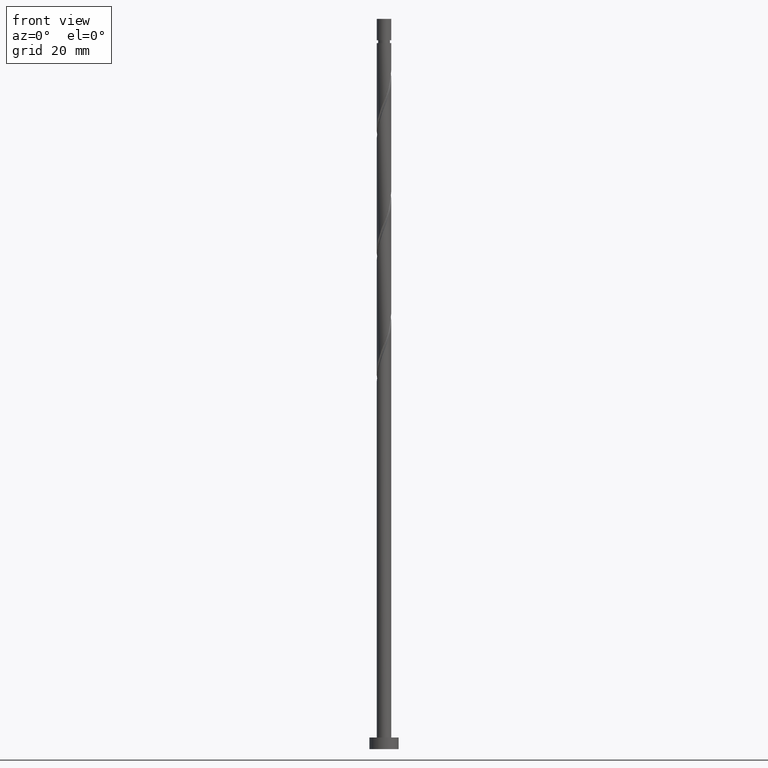
[diagram: clean part render]
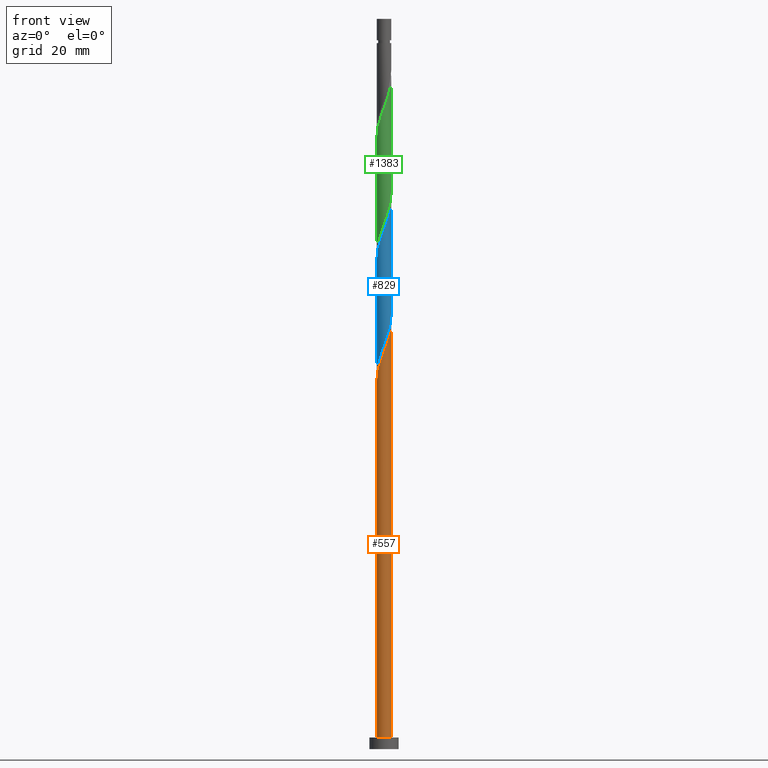
[diagram: same view with three faces highlighted in distinct colors, each labeled with its STEP entity id]
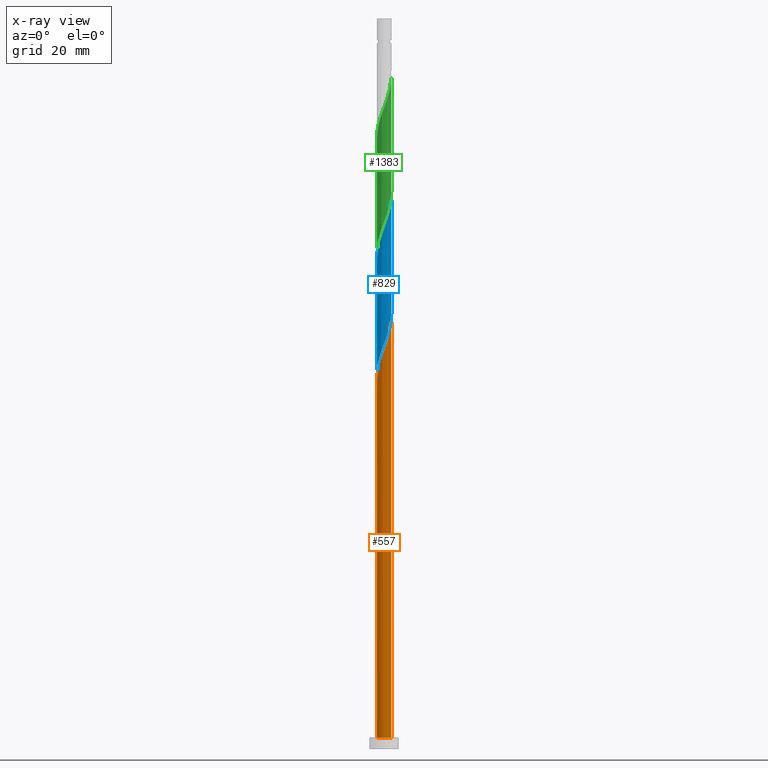
[diagram: x-ray of the same camera — body ghosted, the three highlighted faces saturated]
A machine part, front view with three faces highlighted in distinct colors.
The next image is the same camera in x-ray (body ghosted, the three faces saturated) — at least one of them is partly hidden behind the body in this view.
Their STEP definitions:

[orange] entity #557 — the highlighted cylindrical surface (edge-blend (fillet) strip) has radius 1.25 mm, axis along (-0, -0, -1).
#10 = DIRECTION ( 'NONE',  ( -0.000000000000000000, -0.000000000000000000, -1.000000000000000000 ) ) ;
#25 = CARTESIAN_POINT ( 'NONE',  ( -1.250000000000001998, -1.187453740429884342E-14, 62.88091715462329745 ) ) ;
#31 =( BOUNDED_CURVE ( )  B_SPLINE_CURVE ( 2, ( #25, #989, #498, #626, #1104, #827, #1320, #1550, #121, #1450, #1562, #445, #218, #211, #88, #819, #460, #338, #466, #951, #937, #701, #1288 ),
 .UNSPECIFIED., .F., .T. ) 
 B_SPLINE_CURVE_WITH_KNOTS ( ( 3, 2, 2, 2, 2, 2, 2, 2, 2, 2, 2, 3 ),
 ( 0.05453220231385529082, 0.06250000000000000000, 0.07499999999999995559, 0.08750000000000002220, 0.09999999999999997780, 0.1125000000000000444, 0.1250000000000000000, 0.1374999999999999556, 0.1500000000000000222, 0.1624999999999999778, 0.1750000000000000444, 0.1795322023138555267 ),
 .UNSPECIFIED. ) 
 CURVE ( )  GEOMETRIC_REPRESENTATION_ITEM ( )  RATIONAL_B_SPLINE_CURVE ( ( 0.9039174447099467269, 0.9019565955404762470, 0.9090909090909247148, 0.8978984914501405568, 0.9090909090909247148, 0.8978984914501405568, 0.9090909090909247148, 0.8978984914501405568, 0.9090909090909247148, 0.8978984914501405568, 0.9090909090909247148, 0.8978984914501405568, 0.9090909090909247148, 0.8978984914501405568, 0.9090909090909247148, 0.8978984914501405568, 0.9090909090909247148, 0.8978984914501405568, 0.9090909090909247148, 0.8978984914501405568, 0.9090909090909247148, 0.9050328050005888025, 0.9039174447099467269 ) ) 
 REPRESENTATION_ITEM ( '' )  );
#88 = CARTESIAN_POINT ( 'NONE',  ( 0.6151181395323278567, -1.088177225647684931, 69.79571959609353371 ) ) ;
#113 = DIRECTION ( 'NONE',  ( -0.000000000000000000, -0.000000000000000000, -1.000000000000000000 ) ) ;
#118 = DIRECTION ( 'NONE',  ( -1.000000000000000000, 0.000000000000000000, 0.000000000000000000 ) ) ;
#121 = CARTESIAN_POINT ( 'NONE',  ( -0.5187964976060729372, -1.137255553546201226, 66.67071959609351950 ) ) ;
#182 = EDGE_LOOP ( 'NONE', ( #1233, #870, #1122, #1381 ) ) ;
#204 = VECTOR ( 'NONE', #10, 1000.000000000000000 ) ;
#211 = CARTESIAN_POINT ( 'NONE',  ( 0.4427677986742126759, -1.185602367910983057, 69.27488626276020511 ) ) ;
#218 = CARTESIAN_POINT ( 'NONE',  ( 0.2487468592766552966, -1.225000000000001643, 68.75405292942687652 ) ) ;
#281 = VERTEX_POINT ( 'NONE', #550 ) ;
#309 = DIRECTION ( 'NONE',  ( 1.000000000000000000, 0.000000000000000000, 0.000000000000000000 ) ) ;
#338 = CARTESIAN_POINT ( 'NONE',  ( 1.055086260630533568, -0.6989200819604589610, 71.35821959609353371 ) ) ;
#374 = VECTOR ( 'NONE', #113, 1000.000000000000000 ) ;
#410 = VERTEX_POINT ( 'NONE', #799 ) ;
#445 = CARTESIAN_POINT ( 'NONE',  ( 0.05472591987909802141, -1.264397632089020895, 68.23321959609356213 ) ) ;
#460 = CARTESIAN_POINT ( 'NONE',  ( 0.9212773705104880806, -0.8448360826724228279, 70.83738626276019090 ) ) ;
#466 = CARTESIAN_POINT ( 'NONE',  ( 1.137255553546201226, -0.5187964976060729372, 71.87905292942684810 ) ) ;
#483 = CARTESIAN_POINT ( 'NONE',  ( 0.000000000000000000, 0.000000000000000000, 2.000000000000000000 ) ) ;
#491 = AXIS2_PLACEMENT_3D ( 'NONE', #483, #1511, #309 ) ;
#498 = CARTESIAN_POINT ( 'NONE',  ( -1.225000000000001643, -0.2487468592766554076, 63.54571959609353371 ) ) ;
#520 = VERTEX_POINT ( 'NONE', #908 ) ;
#550 = CARTESIAN_POINT ( 'NONE',  ( 1.250000000000000000, 1.530808498934191571E-16, 2.000000000000000000 ) ) ;
#557 = ADVANCED_FACE ( 'NONE', ( #942 ), #1292, .T. ) ;
#579 = CARTESIAN_POINT ( 'NONE',  ( 1.250000000000000000, 1.530808498934191571E-16, 125.0000000000000000 ) ) ;
#587 = CARTESIAN_POINT ( 'NONE',  ( 0.000000000000000000, 0.000000000000000000, 125.0000000000000000 ) ) ;
#611 = LINE ( 'NONE', #1092, #204 ) ;
#626 = CARTESIAN_POINT ( 'NONE',  ( -1.185602367910983057, -0.4427677986742127869, 64.06655292942689073 ) ) ;
#701 = CARTESIAN_POINT ( 'NONE',  ( 1.250000000000002442, -0.07121717180803631420, 73.10807273208266110 ) ) ;
#799 = CARTESIAN_POINT ( 'NONE',  ( 1.250000000000001998, 1.214441325439654494E-15, 73.29758382128994754 ) ) ;
#819 = CARTESIAN_POINT ( 'NONE',  ( 0.7874684803904430375, -0.9907520833843873609, 70.31655292942689073 ) ) ;
#824 = DIRECTION ( 'NONE',  ( -0.000000000000000000, -0.000000000000000000, -1.000000000000000000 ) ) ;
#827 = CARTESIAN_POINT ( 'NONE',  ( -0.9907520833843873609, -0.7874684803904431485, 65.10821959609354792 ) ) ;
#836 = LINE ( 'NONE', #579, #374 ) ;
#870 = ORIENTED_EDGE ( 'NONE', *, *, #1135, .F. ) ;
#885 = EDGE_CURVE ( 'NONE', #1499, #520, #611, .T. ) ;
#908 = CARTESIAN_POINT ( 'NONE',  ( -1.250000000000000000, 0.000000000000000000, 2.000000000000000000 ) ) ;
#909 = EDGE_CURVE ( 'NONE', #520, #281, #1337, .T. ) ;
#937 = CARTESIAN_POINT ( 'NONE',  ( 1.241911239275444778, -0.1419734966862945535, 72.92071959609353371 ) ) ;
#942 = FACE_OUTER_BOUND ( 'NONE', #182, .T. ) ;
#951 = CARTESIAN_POINT ( 'NONE',  ( 1.219424846461869105, -0.3386729132516872465, 72.39988626276020511 ) ) ;
#970 = AXIS2_PLACEMENT_3D ( 'NONE', #587, #824, #118 ) ;
#989 = CARTESIAN_POINT ( 'NONE',  ( -1.250000000000001554, -0.1256297269074030665, 63.21522173003111789 ) ) ;
#1092 = CARTESIAN_POINT ( 'NONE',  ( -1.250000000000000000, 0.000000000000000000, 125.0000000000000000 ) ) ;
#1104 = CARTESIAN_POINT ( 'NONE',  ( -1.088177225647684931, -0.6151181395323278567, 64.58738626276020511 ) ) ;
#1122 = ORIENTED_EDGE ( 'NONE', *, *, #885, .T. ) ;
#1135 = EDGE_CURVE ( 'NONE', #1499, #410, #31, .T. ) ;
#1140 = EDGE_CURVE ( 'NONE', #410, #281, #836, .T. ) ;
#1150 = CARTESIAN_POINT ( 'NONE',  ( -1.250000000000001998, -1.187453740429884342E-14, 62.88091715462329745 ) ) ;
#1233 = ORIENTED_EDGE ( 'NONE', *, *, #1140, .F. ) ;
#1288 = CARTESIAN_POINT ( 'NONE',  ( 1.250000000000001998, 1.214441325439654494E-15, 73.29758382128994754 ) ) ;
#1292 = CYLINDRICAL_SURFACE ( 'NONE', #970, 1.250000000000000000 ) ;
#1320 = CARTESIAN_POINT ( 'NONE',  ( -0.8448360826724228279, -0.9212773705104880806, 65.62905292942686231 ) ) ;
#1337 = CIRCLE ( 'NONE', #491, 1.250000000000000000 ) ;
#1381 = ORIENTED_EDGE ( 'NONE', *, *, #909, .T. ) ;
#1450 = CARTESIAN_POINT ( 'NONE',  ( -0.3386729132516872465, -1.219424846461869105, 67.19155292942689073 ) ) ;
#1499 = VERTEX_POINT ( 'NONE', #1150 ) ;
#1511 = DIRECTION ( 'NONE',  ( 0.000000000000000000, 0.000000000000000000, 1.000000000000000000 ) ) ;
#1550 = CARTESIAN_POINT ( 'NONE',  ( -0.6989200819604589610, -1.055086260630533568, 66.14988626276021932 ) ) ;
#1562 = CARTESIAN_POINT ( 'NONE',  ( -0.1419734966862945258, -1.241911239275444778, 67.71238626276020511 ) ) ;

[blue] entity #829 — the highlighted cylindrical surface (edge-blend (fillet) strip) has radius 1.25 mm, axis along (-0, -0, -1).
#20 = CARTESIAN_POINT ( 'NONE',  ( 0.6989200819604575177, -1.055086260630532680, 71.35821959609351950 ) ) ;
#30 = DIRECTION ( 'NONE',  ( -0.000000000000000000, -0.000000000000000000, -1.000000000000000000 ) ) ;
#49 = LINE ( 'NONE', #522, #1246 ) ;
#91 =( BOUNDED_CURVE ( )  B_SPLINE_CURVE ( 2, ( #394, #98, #1313, #461, #339, #107, #236, #581, #1534, #1421, #219, #692, #572, #1056, #957, #1209, #476, #864, #1138, #1254, #1021, #176, #652 ),
 .UNSPECIFIED., .F., .T. ) 
 B_SPLINE_CURVE_WITH_KNOTS ( ( 3, 2, 2, 2, 2, 2, 2, 2, 2, 2, 2, 3 ),
 ( 0.3045322023138552492, 0.3125000000000000000, 0.3249999999999999556, 0.3375000000000000222, 0.3499999999999999778, 0.3625000000000000444, 0.3750000000000000000, 0.3874999999999999556, 0.4000000000000000222, 0.4124999999999999778, 0.4250000000000000444, 0.4295322023138556378 ),
 .UNSPECIFIED. ) 
 CURVE ( )  GEOMETRIC_REPRESENTATION_ITEM ( )  RATIONAL_B_SPLINE_CURVE ( ( 0.9039174447099467269, 0.9019565955404761359, 0.9090909090909247148, 0.8978984914501405568, 0.9090909090909247148, 0.8978984914501405568, 0.9090909090909247148, 0.8978984914501405568, 0.9090909090909247148, 0.8978984914501405568, 0.9090909090909247148, 0.8978984914501405568, 0.9090909090909247148, 0.8978984914501405568, 0.9090909090909247148, 0.8978984914501405568, 0.9090909090909247148, 0.8978984914501405568, 0.9090909090909247148, 0.8978984914501405568, 0.9090909090909247148, 0.9050328050005886915, 0.9039174447099467269 ) ) 
 REPRESENTATION_ITEM ( '' )  );
#98 = CARTESIAN_POINT ( 'NONE',  ( -1.250000000000001998, -0.1256297269074024558, 84.04855506336444648 ) ) ;
#107 = CARTESIAN_POINT ( 'NONE',  ( -0.9907520833843873609, -0.7874684803904431485, 85.94155292942687652 ) ) ;
#124 = AXIS2_PLACEMENT_3D ( 'NONE', #1335, #30, #391 ) ;
#127 = CARTESIAN_POINT ( 'NONE',  ( -1.055086260630532458, -0.6989200819604575177, 66.14988626276020511 ) ) ;
#145 = CARTESIAN_POINT ( 'NONE',  ( 1.250000000000000222, 1.641744754761024116E-15, 74.62718870423044848 ) ) ;
#149 = VERTEX_POINT ( 'NONE', #580 ) ;
#173 = EDGE_CURVE ( 'NONE', #149, #385, #91, .T. ) ;
#176 = CARTESIAN_POINT ( 'NONE',  ( 1.250000000000002665, -0.07121717180803457947, 93.94140606541600391 ) ) ;
#194 = CARTESIAN_POINT ( 'NONE',  ( 1.250000000000000222, 1.641744754761024116E-15, 74.62718870423046269 ) ) ;
#201 = CARTESIAN_POINT ( 'NONE',  ( -1.250000000000000000, 0.000000000000000000, 125.0000000000000000 ) ) ;
#219 = CARTESIAN_POINT ( 'NONE',  ( -0.1419734966862945258, -1.241911239275444778, 88.54571959609354792 ) ) ;
#236 = CARTESIAN_POINT ( 'NONE',  ( -0.8448360826724228279, -0.9212773705104880806, 86.46238626276019090 ) ) ;
#240 = EDGE_CURVE ( 'NONE', #385, #975, #49, .T. ) ;
#253 = CARTESIAN_POINT ( 'NONE',  ( 1.250000000000000000, -0.1256297269074027056, 74.29288412882260673 ) ) ;
#254 = EDGE_CURVE ( 'NONE', #149, #497, #1523, .T. ) ;
#262 = CARTESIAN_POINT ( 'NONE',  ( -0.05472591987909851408, -1.264397632089019563, 69.27488626276017669 ) ) ;
#280 = CARTESIAN_POINT ( 'NONE',  ( 0.3386729132516861918, -1.219424846461866663, 70.31655292942689073 ) ) ;
#301 =( BOUNDED_CURVE ( )  B_SPLINE_CURVE ( 2, ( #145, #253, #621, #725, #1467, #1100, #1084, #20, #1229, #280, #493, #262, #1478, #981, #1206, #384, #515, #127, #752, #971, #639, #993, #602 ),
 .UNSPECIFIED., .F., .T. ) 
 B_SPLINE_CURVE_WITH_KNOTS ( ( 3, 2, 2, 2, 2, 2, 2, 2, 2, 2, 2, 3 ),
 ( 0.8045322023138552492, 0.8125000000000000000, 0.8249999999999999556, 0.8375000000000000222, 0.8499999999999999778, 0.8625000000000000444, 0.8750000000000000000, 0.8874999999999999556, 0.9000000000000000222, 0.9124999999999999778, 0.9250000000000000444, 0.9295322023138551382 ),
 .UNSPECIFIED. ) 
 CURVE ( )  GEOMETRIC_REPRESENTATION_ITEM ( )  RATIONAL_B_SPLINE_CURVE ( ( 0.9039174447099412868, 0.9019565955404706958, 0.9090909090909189416, 0.8978984914501352277, 0.9090909090909189416, 0.8978984914501352277, 0.9090909090909189416, 0.8978984914501352277, 0.9090909090909189416, 0.8978984914501352277, 0.9090909090909189416, 0.8978984914501352277, 0.9090909090909189416, 0.8978984914501352277, 0.9090909090909189416, 0.8978984914501352277, 0.9090909090909189416, 0.8978984914501352277, 0.9090909090909189416, 0.8978984914501352277, 0.9090909090909189416, 0.9050328050005834735, 0.9039174447099412868 ) ) 
 REPRESENTATION_ITEM ( '' )  );
#339 = CARTESIAN_POINT ( 'NONE',  ( -1.088177225647684931, -0.6151181395323278567, 85.42071959609349108 ) ) ;
#376 = FACE_OUTER_BOUND ( 'NONE', #1152, .T. ) ;
#384 = CARTESIAN_POINT ( 'NONE',  ( -0.7874684803904422603, -0.9907520833843854735, 67.19155292942687652 ) ) ;
#385 = VERTEX_POINT ( 'NONE', #903 ) ;
#391 = DIRECTION ( 'NONE',  ( -1.000000000000000000, 0.000000000000000000, 0.000000000000000000 ) ) ;
#394 = CARTESIAN_POINT ( 'NONE',  ( -1.250000000000002220, -1.386862007446519028E-15, 83.71425048795660473 ) ) ;
#461 = CARTESIAN_POINT ( 'NONE',  ( -1.185602367910983057, -0.4427677986742127869, 84.89988626276023354 ) ) ;
#476 = CARTESIAN_POINT ( 'NONE',  ( 0.9212773705104880806, -0.8448360826724228279, 91.67071959609351950 ) ) ;
#493 = CARTESIAN_POINT ( 'NONE',  ( 0.1419734966862938874, -1.241911239275443668, 69.79571959609354792 ) ) ;
#497 = VERTEX_POINT ( 'NONE', #788 ) ;
#515 = CARTESIAN_POINT ( 'NONE',  ( -0.9212773705104875255, -0.8448360826724216066, 66.67071959609354792 ) ) ;
#516 = ORIENTED_EDGE ( 'NONE', *, *, #792, .F. ) ;
#522 = CARTESIAN_POINT ( 'NONE',  ( 1.250000000000000000, 1.530808498934191571E-16, 125.0000000000000000 ) ) ;
#572 = CARTESIAN_POINT ( 'NONE',  ( 0.2487468592766552966, -1.225000000000001643, 89.58738626276019090 ) ) ;
#580 = CARTESIAN_POINT ( 'NONE',  ( -1.250000000000002220, -1.386862007446519028E-15, 83.71425048795661894 ) ) ;
#581 = CARTESIAN_POINT ( 'NONE',  ( -0.6989200819604589610, -1.055086260630533568, 86.98321959609351950 ) ) ;
#602 = CARTESIAN_POINT ( 'NONE',  ( -1.250000000000000222, -5.277572179688405354E-15, 64.21052203756380550 ) ) ;
#621 = CARTESIAN_POINT ( 'NONE',  ( 1.225000000000000311, -0.2487468592766555742, 73.96238626276020511 ) ) ;
#639 = CARTESIAN_POINT ( 'NONE',  ( -1.241911239275443668, -0.1419734966862939429, 64.58738626276021932 ) ) ;
#652 = CARTESIAN_POINT ( 'NONE',  ( 1.250000000000001998, 1.214441325439654494E-15, 94.13091715462329034 ) ) ;
#668 = DIRECTION ( 'NONE',  ( -0.000000000000000000, -0.000000000000000000, -1.000000000000000000 ) ) ;
#692 = CARTESIAN_POINT ( 'NONE',  ( 0.05472591987909802141, -1.264397632089020895, 89.06655292942689073 ) ) ;
#721 = ORIENTED_EDGE ( 'NONE', *, *, #240, .F. ) ;
#725 = CARTESIAN_POINT ( 'NONE',  ( 1.185602367910980615, -0.4427677986742125094, 73.44155292942687652 ) ) ;
#752 = CARTESIAN_POINT ( 'NONE',  ( -1.137255553546199893, -0.5187964976060719380, 65.62905292942689073 ) ) ;
#762 = CYLINDRICAL_SURFACE ( 'NONE', #124, 1.250000000000000000 ) ;
#788 = CARTESIAN_POINT ( 'NONE',  ( -1.250000000000000222, -5.277572179688405354E-15, 64.21052203756380550 ) ) ;
#792 = EDGE_CURVE ( 'NONE', #975, #497, #301, .T. ) ;
#829 = ADVANCED_FACE ( 'NONE', ( #376 ), #762, .T. ) ;
#835 = ORIENTED_EDGE ( 'NONE', *, *, #173, .F. ) ;
#864 = CARTESIAN_POINT ( 'NONE',  ( 1.055086260630533568, -0.6989200819604589610, 92.19155292942689073 ) ) ;
#903 = CARTESIAN_POINT ( 'NONE',  ( 1.250000000000001998, 1.214441325439654494E-15, 94.13091715462329034 ) ) ;
#957 = CARTESIAN_POINT ( 'NONE',  ( 0.6151181395323278567, -1.088177225647684931, 90.62905292942686231 ) ) ;
#971 = CARTESIAN_POINT ( 'NONE',  ( -1.219424846461866663, -0.3386729132516864138, 65.10821959609353371 ) ) ;
#975 = VERTEX_POINT ( 'NONE', #194 ) ;
#981 = CARTESIAN_POINT ( 'NONE',  ( -0.4427677986742123983, -1.185602367910980615, 68.23321959609354792 ) ) ;
#993 = CARTESIAN_POINT ( 'NONE',  ( -1.250000000000000222, -0.07121717180804182368, 64.40003312677109193 ) ) ;
#1021 = CARTESIAN_POINT ( 'NONE',  ( 1.241911239275444778, -0.1419734966862945535, 93.75405292942686231 ) ) ;
#1033 = DIRECTION ( 'NONE',  ( -0.000000000000000000, -0.000000000000000000, -1.000000000000000000 ) ) ;
#1056 = CARTESIAN_POINT ( 'NONE',  ( 0.4427677986742126759, -1.185602367910983057, 90.10821959609353371 ) ) ;
#1084 = CARTESIAN_POINT ( 'NONE',  ( 0.8448360826724216066, -0.9212773705104875255, 71.87905292942687652 ) ) ;
#1100 = CARTESIAN_POINT ( 'NONE',  ( 0.9907520833843854735, -0.7874684803904423713, 72.39988626276020511 ) ) ;
#1138 = CARTESIAN_POINT ( 'NONE',  ( 1.137255553546201226, -0.5187964976060729372, 92.71238626276021932 ) ) ;
#1152 = EDGE_LOOP ( 'NONE', ( #721, #835, #1266, #516 ) ) ;
#1206 = CARTESIAN_POINT ( 'NONE',  ( -0.6151181395323275236, -1.088177225647683377, 67.71238626276023354 ) ) ;
#1209 = CARTESIAN_POINT ( 'NONE',  ( 0.7874684803904430375, -0.9907520833843873609, 91.14988626276020511 ) ) ;
#1229 = CARTESIAN_POINT ( 'NONE',  ( 0.5187964976060719380, -1.137255553546199893, 70.83738626276019090 ) ) ;
#1246 = VECTOR ( 'NONE', #668, 1000.000000000000000 ) ;
#1254 = CARTESIAN_POINT ( 'NONE',  ( 1.219424846461869105, -0.3386729132516872465, 93.23321959609354792 ) ) ;
#1266 = ORIENTED_EDGE ( 'NONE', *, *, #254, .T. ) ;
#1313 = CARTESIAN_POINT ( 'NONE',  ( -1.225000000000001643, -0.2487468592766554076, 84.37905292942686231 ) ) ;
#1335 = CARTESIAN_POINT ( 'NONE',  ( 0.000000000000000000, 0.000000000000000000, 125.0000000000000000 ) ) ;
#1421 = CARTESIAN_POINT ( 'NONE',  ( -0.3386729132516872465, -1.219424846461869105, 88.02488626276020511 ) ) ;
#1467 = CARTESIAN_POINT ( 'NONE',  ( 1.088177225647683377, -0.6151181395323275236, 72.92071959609354792 ) ) ;
#1478 = CARTESIAN_POINT ( 'NONE',  ( -0.2487468592766554909, -1.225000000000000311, 68.75405292942687652 ) ) ;
#1512 = VECTOR ( 'NONE', #1033, 1000.000000000000000 ) ;
#1523 = LINE ( 'NONE', #201, #1512 ) ;
#1534 = CARTESIAN_POINT ( 'NONE',  ( -0.5187964976060729372, -1.137255553546201226, 87.50405292942684810 ) ) ;

[green] entity #1383 — the highlighted cylindrical surface (edge-blend (fillet) strip) has radius 1.25 mm, axis along (-0, -0, -1).
#2 = CARTESIAN_POINT ( 'NONE',  ( 1.250000000000001776, 5.697379057618130806E-16, 114.9642504879566047 ) ) ;
#34 = CARTESIAN_POINT ( 'NONE',  ( -1.250000000000001776, -7.421585877686775163E-16, 104.5475838212899333 ) ) ;
#45 = CARTESIAN_POINT ( 'NONE',  ( 1.250000000000003109, -0.07121717180803022185, 114.7747393987493609 ) ) ;
#67 = CARTESIAN_POINT ( 'NONE',  ( -1.137255553546199893, -0.5187964976060719380, 86.46238626276021932 ) ) ;
#74 = CARTESIAN_POINT ( 'NONE',  ( 1.088177225647683377, -0.6151181395323275236, 93.75405292942689073 ) ) ;
#82 =( BOUNDED_CURVE ( )  B_SPLINE_CURVE ( 2, ( #300, #172, #413, #1527, #74, #794, #1404, #800, #649, #1279, #1393, #319, #890, #551, #781, #418, #663, #1260, #67, #789, #295, #1159, #1035 ),
 .UNSPECIFIED., .F., .T. ) 
 B_SPLINE_CURVE_WITH_KNOTS ( ( 3, 2, 2, 2, 2, 2, 2, 2, 2, 2, 2, 3 ),
 ( 0.5545322023138553602, 0.5625000000000000000, 0.5749999999999999556, 0.5875000000000000222, 0.5999999999999999778, 0.6125000000000000444, 0.6250000000000000000, 0.6374999999999999556, 0.6500000000000000222, 0.6624999999999999778, 0.6750000000000000444, 0.6795322023138549161 ),
 .UNSPECIFIED. ) 
 CURVE ( )  GEOMETRIC_REPRESENTATION_ITEM ( )  RATIONAL_B_SPLINE_CURVE ( ( 0.9039174447099411758, 0.9019565955404708069, 0.9090909090909189416, 0.8978984914501352277, 0.9090909090909189416, 0.8978984914501352277, 0.9090909090909189416, 0.8978984914501352277, 0.9090909090909189416, 0.8978984914501352277, 0.9090909090909189416, 0.8978984914501352277, 0.9090909090909189416, 0.8978984914501352277, 0.9090909090909189416, 0.8978984914501352277, 0.9090909090909189416, 0.8978984914501352277, 0.9090909090909189416, 0.8978984914501352277, 0.9090909090909189416, 0.9050328050005835845, 0.9039174447099413978 ) ) 
 REPRESENTATION_ITEM ( '' )  );
#129 = CARTESIAN_POINT ( 'NONE',  ( 0.9212773705104880806, -0.8448360826724228279, 112.5040529294268765 ) ) ;
#135 = CARTESIAN_POINT ( 'NONE',  ( 1.250000000000000222, 1.641744754761024116E-15, 95.46052203756379129 ) ) ;
#137 = CARTESIAN_POINT ( 'NONE',  ( -1.250000000000002220, -0.1256297269073989586, 104.8818883966977609 ) ) ;
#164 = DIRECTION ( 'NONE',  ( -0.000000000000000000, -0.000000000000000000, -1.000000000000000000 ) ) ;
#170 = ORIENTED_EDGE ( 'NONE', *, *, #1361, .F. ) ;
#172 = CARTESIAN_POINT ( 'NONE',  ( 1.249999999999999556, -0.1256297269074044265, 95.12621746215592111 ) ) ;
#174 = ORIENTED_EDGE ( 'NONE', *, *, #1546, .F. ) ;
#178 = CARTESIAN_POINT ( 'NONE',  ( 1.250000000000001776, 5.697379057618130806E-16, 114.9642504879566047 ) ) ;
#256 = CARTESIAN_POINT ( 'NONE',  ( 0.05472591987909802141, -1.264397632089020895, 109.8998862627602051 ) ) ;
#283 = CARTESIAN_POINT ( 'NONE',  ( 0.2487468592766552966, -1.225000000000001643, 110.4207195960934911 ) ) ;
#289 = CARTESIAN_POINT ( 'NONE',  ( -1.225000000000001643, -0.2487468592766554076, 105.2123862627601909 ) ) ;
#295 = CARTESIAN_POINT ( 'NONE',  ( -1.241911239275443668, -0.1419734966862939429, 85.42071959609357634 ) ) ;
#300 = CARTESIAN_POINT ( 'NONE',  ( 1.250000000000000222, 1.641744754761024116E-15, 95.46052203756379129 ) ) ;
#319 = CARTESIAN_POINT ( 'NONE',  ( -0.05472591987909851408, -1.264397632089019563, 90.10821959609353371 ) ) ;
#360 = CARTESIAN_POINT ( 'NONE',  ( -1.088177225647684931, -0.6151181395323278567, 106.2540529294268481 ) ) ;
#393 = DIRECTION ( 'NONE',  ( -0.000000000000000000, -0.000000000000000000, -1.000000000000000000 ) ) ;
#413 = CARTESIAN_POINT ( 'NONE',  ( 1.225000000000000311, -0.2487468592766555742, 94.79571959609351950 ) ) ;
#418 = CARTESIAN_POINT ( 'NONE',  ( -0.7874684803904422603, -0.9907520833843854735, 88.02488626276017669 ) ) ;
#485 = CARTESIAN_POINT ( 'NONE',  ( 0.7874684803904430375, -0.9907520833843873609, 111.9832195960935621 ) ) ;
#504 = EDGE_LOOP ( 'NONE', ( #1207, #170, #1133, #174 ) ) ;
#506 = CARTESIAN_POINT ( 'NONE',  ( -1.250000000000001776, -7.421585877686775163E-16, 104.5475838212899333 ) ) ;
#519 = CARTESIAN_POINT ( 'NONE',  ( -0.9907520833843873609, -0.7874684803904431485, 106.7748862627602051 ) ) ;
#551 = CARTESIAN_POINT ( 'NONE',  ( -0.4427677986742123983, -1.185602367910980615, 89.06655292942686231 ) ) ;
#589 = VECTOR ( 'NONE', #164, 1000.000000000000000 ) ;
#613 = CARTESIAN_POINT ( 'NONE',  ( 1.219424846461869105, -0.3386729132516872465, 114.0665529294269049 ) ) ;
#625 = CARTESIAN_POINT ( 'NONE',  ( 1.137255553546201226, -0.5187964976060729372, 113.5457195960934911 ) ) ;
#641 = CARTESIAN_POINT ( 'NONE',  ( -1.185602367910983057, -0.4427677986742127869, 105.7332195960935479 ) ) ;
#649 = CARTESIAN_POINT ( 'NONE',  ( 0.5187964976060719380, -1.137255553546199893, 91.67071959609354792 ) ) ;
#663 = CARTESIAN_POINT ( 'NONE',  ( -0.9212773705104875255, -0.8448360826724216066, 87.50405292942686231 ) ) ;
#728 = CARTESIAN_POINT ( 'NONE',  ( 0.000000000000000000, 0.000000000000000000, 125.0000000000000000 ) ) ;
#764 = CARTESIAN_POINT ( 'NONE',  ( 1.241911239275444778, -0.1419734966862945535, 114.5873862627601625 ) ) ;
#781 = CARTESIAN_POINT ( 'NONE',  ( -0.6151181395323275236, -1.088177225647683377, 88.54571959609353371 ) ) ;
#789 = CARTESIAN_POINT ( 'NONE',  ( -1.219424846461866663, -0.3386729132516864138, 85.94155292942686231 ) ) ;
#794 = CARTESIAN_POINT ( 'NONE',  ( 0.9907520833843854735, -0.7874684803904423713, 93.23321959609354792 ) ) ;
#800 = CARTESIAN_POINT ( 'NONE',  ( 0.6989200819604575177, -1.055086260630532680, 92.19155292942686231 ) ) ;
#844 = CARTESIAN_POINT ( 'NONE',  ( -0.6989200819604589610, -1.055086260630533568, 107.8165529294268907 ) ) ;
#883 = VERTEX_POINT ( 'NONE', #135 ) ;
#890 = CARTESIAN_POINT ( 'NONE',  ( -0.2487468592766554909, -1.225000000000000311, 89.58738626276021932 ) ) ;
#964 = CARTESIAN_POINT ( 'NONE',  ( 0.4427677986742126759, -1.185602367910983057, 110.9415529294268765 ) ) ;
#996 = FACE_OUTER_BOUND ( 'NONE', #504, .T. ) ;
#1005 = CYLINDRICAL_SURFACE ( 'NONE', #1234, 1.250000000000000000 ) ;
#1018 = DIRECTION ( 'NONE',  ( -0.000000000000000000, -0.000000000000000000, -1.000000000000000000 ) ) ;
#1035 = CARTESIAN_POINT ( 'NONE',  ( -1.250000000000000222, -5.277572179688405354E-15, 85.04385537089716252 ) ) ;
#1086 = CARTESIAN_POINT ( 'NONE',  ( -0.8448360826724228279, -0.9212773705104880806, 107.2957195960935479 ) ) ;
#1095 = VERTEX_POINT ( 'NONE', #1256 ) ;
#1101 = VERTEX_POINT ( 'NONE', #178 ) ;
#1103 = CARTESIAN_POINT ( 'NONE',  ( 1.055086260630533568, -0.6989200819604589610, 113.0248862627602051 ) ) ;
#1120 = CARTESIAN_POINT ( 'NONE',  ( 0.6151181395323278567, -1.088177225647684931, 111.4623862627602051 ) ) ;
#1133 = ORIENTED_EDGE ( 'NONE', *, *, #1473, .T. ) ;
#1158 =( BOUNDED_CURVE ( )  B_SPLINE_CURVE ( 2, ( #506, #137, #289, #641, #360, #519, #1086, #844, #1461, #1368, #1223, #256, #283, #964, #1120, #485, #129, #1103, #625, #613, #764, #45, #2 ),
 .UNSPECIFIED., .F., .T. ) 
 B_SPLINE_CURVE_WITH_KNOTS ( ( 3, 2, 2, 2, 2, 2, 2, 2, 2, 2, 2, 3 ),
 ( 0.5545322023138550271, 0.5625000000000000000, 0.5749999999999999556, 0.5875000000000000222, 0.5999999999999999778, 0.6125000000000000444, 0.6250000000000000000, 0.6374999999999999556, 0.6500000000000000222, 0.6624999999999999778, 0.6750000000000000444, 0.6795322023138559153 ),
 .UNSPECIFIED. ) 
 CURVE ( )  GEOMETRIC_REPRESENTATION_ITEM ( )  RATIONAL_B_SPLINE_CURVE ( ( 0.9039174447099469489, 0.9019565955404760249, 0.9090909090909247148, 0.8978984914501405568, 0.9090909090909247148, 0.8978984914501405568, 0.9090909090909247148, 0.8978984914501405568, 0.9090909090909247148, 0.8978984914501405568, 0.9090909090909247148, 0.8978984914501405568, 0.9090909090909247148, 0.8978984914501405568, 0.9090909090909247148, 0.8978984914501405568, 0.9090909090909247148, 0.8978984914501405568, 0.9090909090909247148, 0.8978984914501405568, 0.9090909090909247148, 0.9050328050005884695, 0.9039174447099465048 ) ) 
 REPRESENTATION_ITEM ( '' )  );
#1159 = CARTESIAN_POINT ( 'NONE',  ( -1.250000000000000000, -0.07121717180804529312, 85.23336646010446316 ) ) ;
#1207 = ORIENTED_EDGE ( 'NONE', *, *, #1326, .F. ) ;
#1215 = DIRECTION ( 'NONE',  ( -1.000000000000000000, 0.000000000000000000, 0.000000000000000000 ) ) ;
#1223 = CARTESIAN_POINT ( 'NONE',  ( -0.1419734966862945258, -1.241911239275444778, 109.3790529294268765 ) ) ;
#1234 = AXIS2_PLACEMENT_3D ( 'NONE', #728, #393, #1215 ) ;
#1240 = LINE ( 'NONE', #1490, #589 ) ;
#1256 = CARTESIAN_POINT ( 'NONE',  ( -1.250000000000000222, -5.277572179688405354E-15, 85.04385537089716252 ) ) ;
#1260 = CARTESIAN_POINT ( 'NONE',  ( -1.055086260630532458, -0.6989200819604575177, 86.98321959609353371 ) ) ;
#1268 = LINE ( 'NONE', #1385, #1513 ) ;
#1279 = CARTESIAN_POINT ( 'NONE',  ( 0.3386729132516861918, -1.219424846461866663, 91.14988626276021932 ) ) ;
#1312 = VERTEX_POINT ( 'NONE', #34 ) ;
#1326 = EDGE_CURVE ( 'NONE', #1101, #883, #1240, .T. ) ;
#1361 = EDGE_CURVE ( 'NONE', #1312, #1101, #1158, .T. ) ;
#1368 = CARTESIAN_POINT ( 'NONE',  ( -0.3386729132516872465, -1.219424846461869105, 108.8582195960935621 ) ) ;
#1383 = ADVANCED_FACE ( 'NONE', ( #996 ), #1005, .T. ) ;
#1385 = CARTESIAN_POINT ( 'NONE',  ( -1.250000000000000000, 0.000000000000000000, 125.0000000000000000 ) ) ;
#1393 = CARTESIAN_POINT ( 'NONE',  ( 0.1419734966862938874, -1.241911239275443668, 90.62905292942690494 ) ) ;
#1404 = CARTESIAN_POINT ( 'NONE',  ( 0.8448360826724216066, -0.9212773705104875255, 92.71238626276023354 ) ) ;
#1461 = CARTESIAN_POINT ( 'NONE',  ( -0.5187964976060729372, -1.137255553546201226, 108.3373862627602051 ) ) ;
#1473 = EDGE_CURVE ( 'NONE', #1312, #1095, #1268, .T. ) ;
#1490 = CARTESIAN_POINT ( 'NONE',  ( 1.250000000000000000, 1.530808498934191571E-16, 125.0000000000000000 ) ) ;
#1513 = VECTOR ( 'NONE', #1018, 1000.000000000000000 ) ;
#1527 = CARTESIAN_POINT ( 'NONE',  ( 1.185602367910980615, -0.4427677986742125094, 94.27488626276019090 ) ) ;
#1546 = EDGE_CURVE ( 'NONE', #883, #1095, #82, .T. ) ;